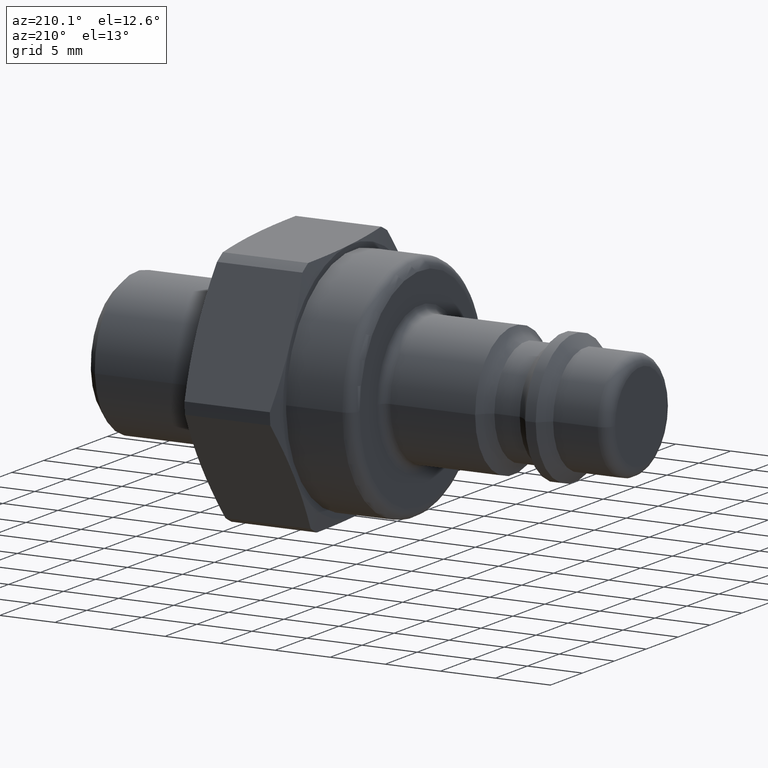
[diagram: clean part render]
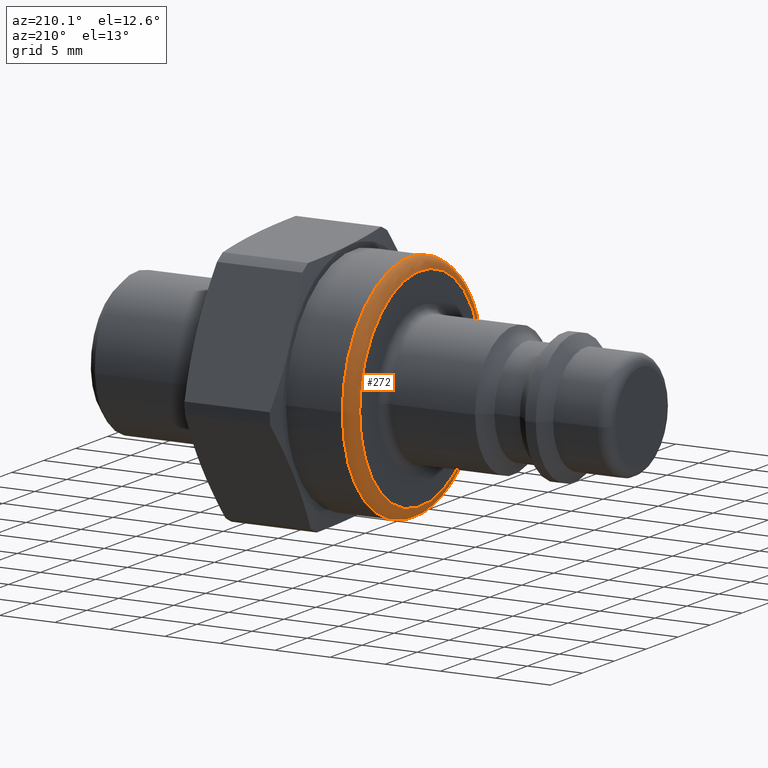
[diagram: same view with one face highlighted and labeled with its STEP entity id]
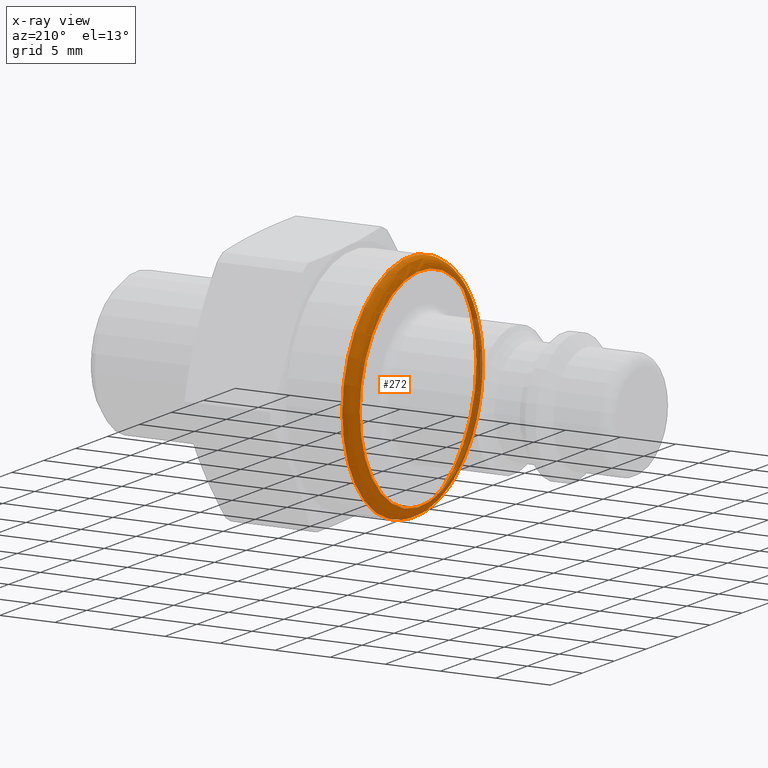
[diagram: x-ray of the same camera — body ghosted, the highlighted face saturated]
A machine part, auxiliary view. The second image highlights one B-rep face of the part: STEP entity #272.
The next image is the same camera in x-ray: the body ghosted, the highlighted face saturated — about 13% of this face is hidden behind the body in this view.
In plain terms, the highlighted toroidal blend (fillet) surface has major radius 9.5 mm and minor (blend) radius 1 mm.
Its self-contained STEP definition (entity closure, byte-faithful):
#241=CARTESIAN_POINT('',(21.0,10.500000000000000,-2.571758E-015));
#242=VERTEX_POINT('',#241);
#243=CARTESIAN_POINT('',(21.0,0.0,0.0));
#244=DIRECTION('',(-1.0,0.0,0.0));
#245=DIRECTION('',(0.0,-1.0,0.0));
#246=AXIS2_PLACEMENT_3D('',#243,#244,#245);
#247=CIRCLE('',#246,10.500000000000000);
#248=EDGE_CURVE('',#242,#242,#247,.T.);
#253=CARTESIAN_POINT('',(21.0,0.0,0.0));
#254=DIRECTION('',(1.0,0.0,0.0));
#255=DIRECTION('',(0.0,0.0,-1.0));
#256=AXIS2_PLACEMENT_3D('',#253,#254,#255);
#257=TOROIDAL_SURFACE('',#256,9.500000000000000,1.0);
#258=CARTESIAN_POINT('',(20.0,9.500000000000000,0.0));
#259=VERTEX_POINT('',#258);
#260=CARTESIAN_POINT('',(20.0,0.0,0.0));
#261=DIRECTION('',(1.0,0.0,0.0));
#262=DIRECTION('',(0.0,-1.0,0.0));
#263=AXIS2_PLACEMENT_3D('',#260,#261,#262);
#264=CIRCLE('',#263,9.500000000000000);
#265=EDGE_CURVE('',#259,#259,#264,.T.);
#266=ORIENTED_EDGE('',*,*,#265,.T.);
#267=EDGE_LOOP('',(#266));
#268=FACE_OUTER_BOUND('',#267,.T.);
#269=ORIENTED_EDGE('',*,*,#248,.T.);
#270=EDGE_LOOP('',(#269));
#271=FACE_BOUND('',#270,.T.);
#272=ADVANCED_FACE('',(#268,#271),#257,.T.);